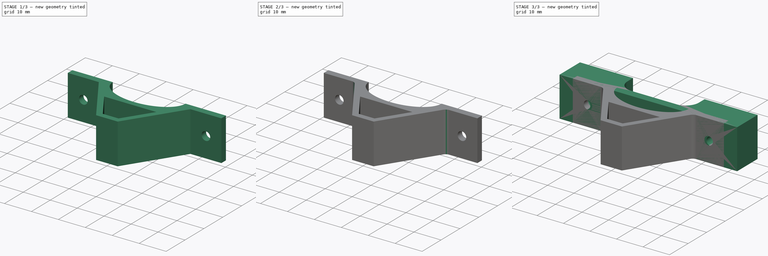
[diagram: build sequence overview — one tinted view per stage of 3, left to right]
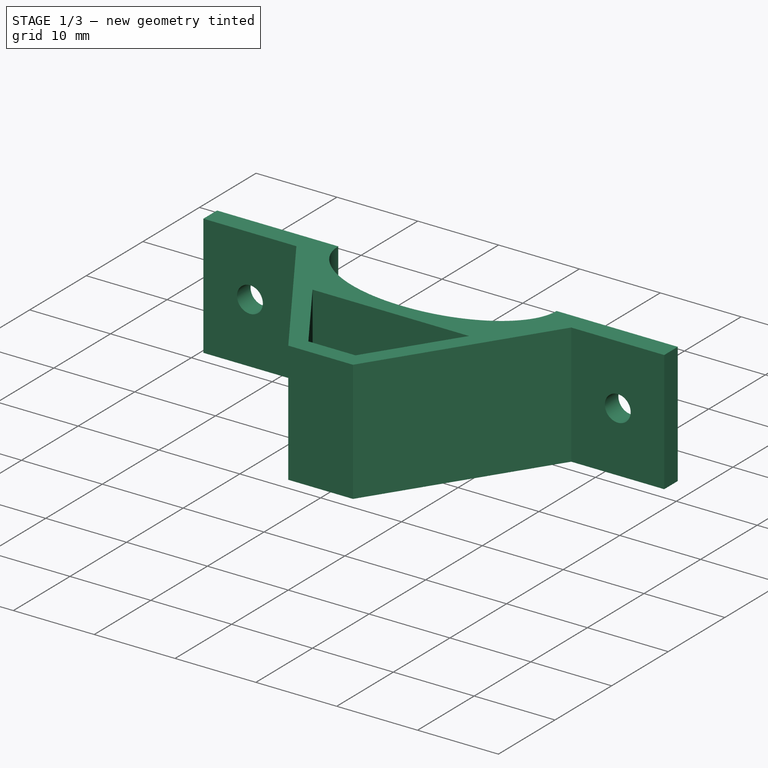
[diagram: stage 1 of 3 — iso view after this stage's code; geometry added in this stage tinted green]
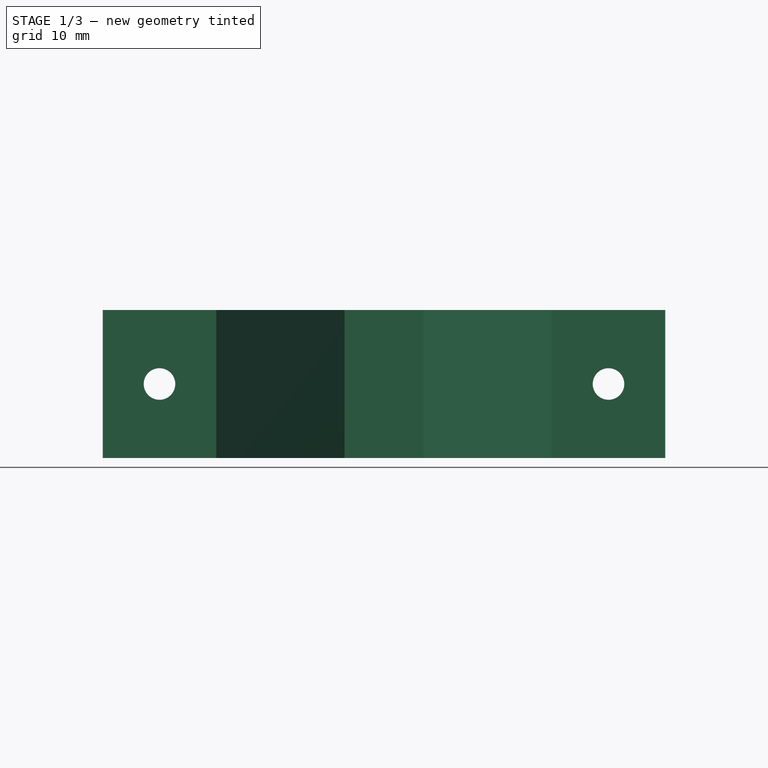
[diagram: stage 1 of 3 — front view after this stage's code; geometry added in this stage tinted green]
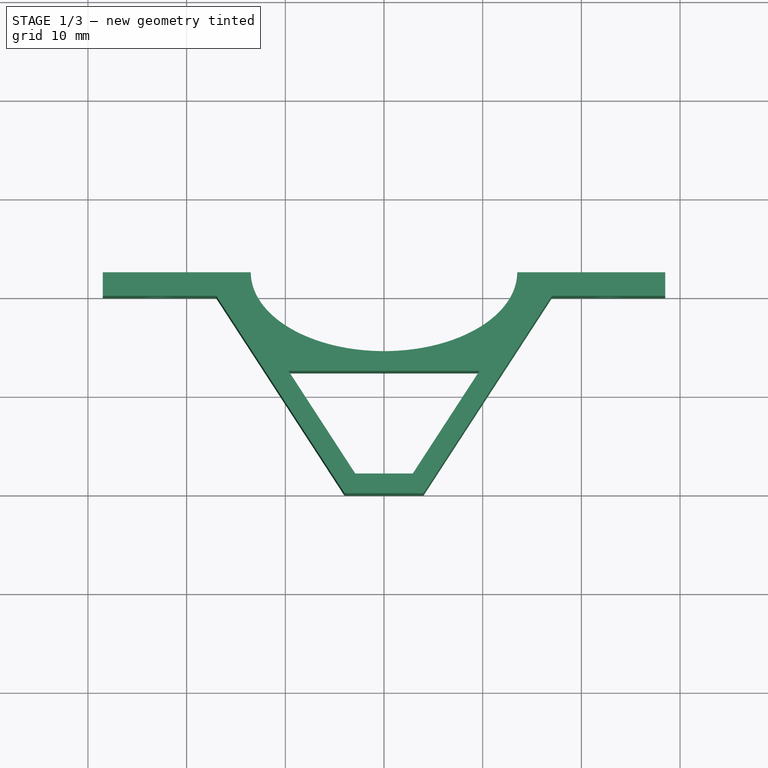
[diagram: stage 1 of 3 — top view after this stage's code; geometry added in this stage tinted green]
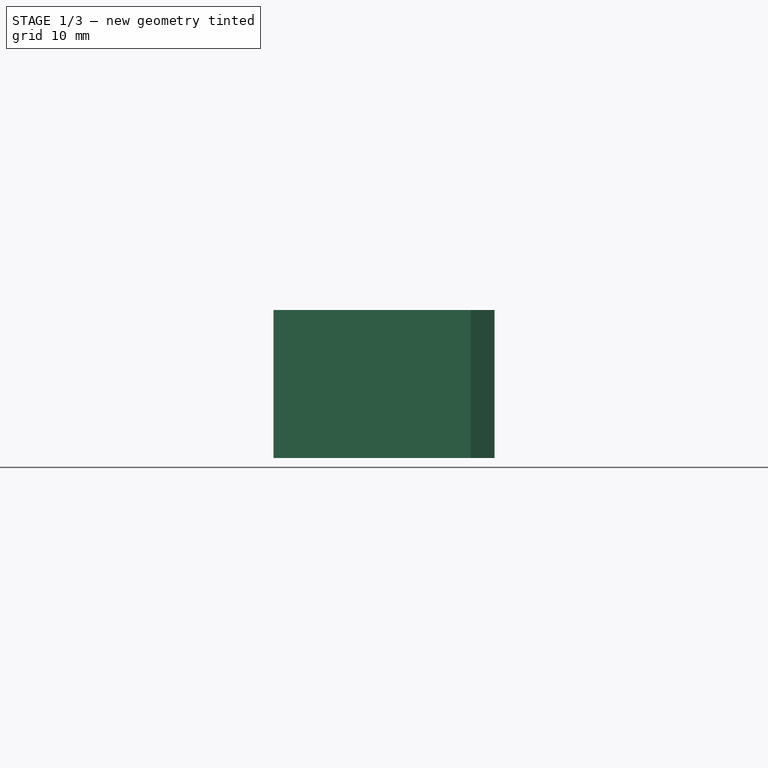
[diagram: stage 1 of 3 — right view after this stage's code; geometry added in this stage tinted green]
FCSTD DOCUMENT  (FreeCAD 1.0R39109 (Git))
Label: bike speeder hall sensor mount
License: All rights reserved
LicenseURL: https://en.wikipedia.org/wiki/All_rights_reserved
objects: Sketcher::SketchObject×4, PartDesign::Pad×2, PartDesign::Pocket×2, PartDesign::Body×2, PartDesign::Fillet×1
note: 25 computed .brp shape members not serialized (recipe doc carries the construction recipe); baked Part::Feature solids carry a one-line shape summary decoded from their .brp

FEATURE [PartDesign::Body] Body
  AllowCompound = false
  Group = -> [Sketch,Pad,Sketch001,Pocket]
  Origin = -> Origin
  Tip = -> Pocket
FEATURE [Sketcher::SketchObject] Sketch002
  ArcFitTolerance = 1e-06
  AttachmentSupport = -> [XY_Plane001]
  FullyConstrained = true
  MakeInternals = false
  MapMode = 5
  sketch-geometry (20):
    g0: LineSegment StartX=28.5 StartY=0 StartZ=0 EndX=28.5 EndY=2.4 EndZ=0
    g1: LineSegment StartX=28.5 StartY=2.4 StartZ=0 EndX=13.5 EndY=2.4 EndZ=0
    g2: LineSegment StartX=-28.5 StartY=0 StartZ=0 EndX=-28.5 EndY=2.4 EndZ=0
    g3: LineSegment StartX=-28.5 StartY=2.4 StartZ=0 EndX=-13.5 EndY=2.4 EndZ=0
    g4: LineSegment StartX=-28.5 StartY=0 StartZ=0 EndX=-17 EndY=0 EndZ=0
    g5: LineSegment StartX=-17 StartY=0 StartZ=0 EndX=-4 EndY=-20 EndZ=0
    g6: LineSegment StartX=-4 StartY=-20 StartZ=0 EndX=4 EndY=-20 EndZ=0
    g7: LineSegment StartX=4 StartY=-20 StartZ=0 EndX=17 EndY=0 EndZ=0
    g8: LineSegment StartX=17 StartY=0 StartZ=0 EndX=28.5 EndY=0 EndZ=0
    g9: ArcOfEllipse CenterX=0 CenterY=2.4 CenterZ=0 NormalX=0 NormalY=0 NormalZ=1 MajorRadius=13.5 MinorRadius=8 AngleXU=-3.14159 StartAngle=0 EndAngle=3.14159
    g10: LineSegment [constr] StartX=-13.5 StartY=2.4 StartZ=0 EndX=13.5 EndY=2.4 EndZ=0
    g11: LineSegment [constr] StartX=0 StartY=-5.6 StartZ=0 EndX=0 EndY=10.4 EndZ=0
    g12: GeomPoint [constr] X=-10.8743 Y=2.4 Z=0
    g13: GeomPoint [constr] X=10.8743 Y=2.4 Z=0
    g14: LineSegment StartX=-9.67463 StartY=-7.6 StartZ=0 EndX=-2.91463 EndY=-18 EndZ=0
    g15: LineSegment StartX=-2.91463 StartY=-18 StartZ=0 EndX=2.91463 EndY=-18 EndZ=0
    g16: LineSegment StartX=2.91463 StartY=-18 StartZ=0 EndX=9.67463 EndY=-7.6 EndZ=0
    g17: LineSegment StartX=9.67463 StartY=-7.6 StartZ=0 EndX=-9.67463 EndY=-7.6 EndZ=0
    g18: GeomPoint [constr] X=-11.3515 Y=-8.68998 Z=0
    g19: LineSegment [constr] StartX=-11.3515 StartY=-8.68998 StartZ=0 EndX=-9.67463 EndY=-7.6 EndZ=0
  constraints (44):
    c: PointOnObject(g2,g-1)
    c: Coincident(g0,g1)
    c: Horizontal(g1)
    c: Coincident(g2,g3)
    c: Horizontal(g3)
    c: Symmetric(g0,g2,g-1)
    c: Vertical(g2)
    c: Symmetric(g2,g0,g-2)
    c: DistanceX(g3,g3) = 15
    c: Coincident(g2,g4)
    c: Coincident(g5,g6)
    c: Coincident(g6,g7)
    c: Coincident(g7,g8)
    c: Coincident(g8,g0)
    c: Symmetric(g4,g7,g-2)
    c: Symmetric(g5,g6,g-2)
    c: PointOnObject(g4,g-1)
    c: DistanceY(g5,g-1) = 20
    c: DistanceX(g6,g6) = 8
    c: InternalAlignment(g10-g13 -> g9) x4
    c: Coincident(g9,g3)
    c: Coincident(g9,g1)
    c: Horizontal(g10)
    c: DistanceX(g3,g1) = 27
    c: DistanceY(g11,g3) = 8
    c: PointOnObject(g9,g-2)
    c: DistanceY(g2,g2) = 2.4
    c: Horizontal(g10,g3)
    c: Coincident(g5,g4)
    c: DistanceX(g4,g7) = 34
    c: Coincident(g14,g15)
    c: Coincident(g15,g16)
    c: Coincident(g16,g17)
    c: Coincident(g17,g14)
    c: Symmetric(g14,g16,g-2)
    c: Symmetric(g14,g15,g-2)
    c: DistanceY(g14,g11) = 2
    c: DistanceY(g5,g14) = 2
    c: Parallel(g5,g14)
    c: PointOnObject(g18,g5)
    c: Coincident(g19,g18)
    c: Coincident(g19,g14)
    c: Perpendicular(g19,g14)
    c: Distance(g19,g19) = 2
FEATURE [PartDesign::Pad] Pad001
  Direction = (0,0,1)
  Length = 15
  Length2 = 10
  Midplane = true
  Profile = -> Sketch002
  ReferenceAxis = -> Sketch002 [N_Axis]
  Refine = true
  Suppressed = false
  Type = 0
FEATURE [Sketcher::SketchObject] Sketch003
  ArcFitTolerance = 1e-06
  AttachmentSupport = -> [XZ_Plane001]
  ExternalGeometry = -> [Pad001]
  FullyConstrained = true
  MakeInternals = false
  MapMode = 5
  Placement = pos=(0,0,0) rot=(1,0,0;1.5708rad)
  sketch-geometry (2):
    g0: Circle CenterX=-22.75 CenterY=-8e-16 CenterZ=0 NormalX=0 NormalY=0 NormalZ=1 AngleXU=0 Radius=1.6
    g1: Circle CenterX=22.75 CenterY=0 CenterZ=0 NormalX=0 NormalY=0 NormalZ=1 AngleXU=0 Radius=1.6
  constraints (4):
    c: Symmetric(g-3,g-4,g0)
    c: Symmetric(g1,g0,g-2)
    c: Equal(g0,g1)
    c: Diameter(g0) = 3.2
FEATURE [PartDesign::Pocket] Pocket001
  BaseFeature = -> Pad001
  Direction = (0,1,-2e-16)
  Length = 5
  Length2 = 5
  Profile = -> Sketch003
  ReferenceAxis = -> Sketch003 [N_Axis]
  Refine = true
  Suppressed = false
  Type = 1
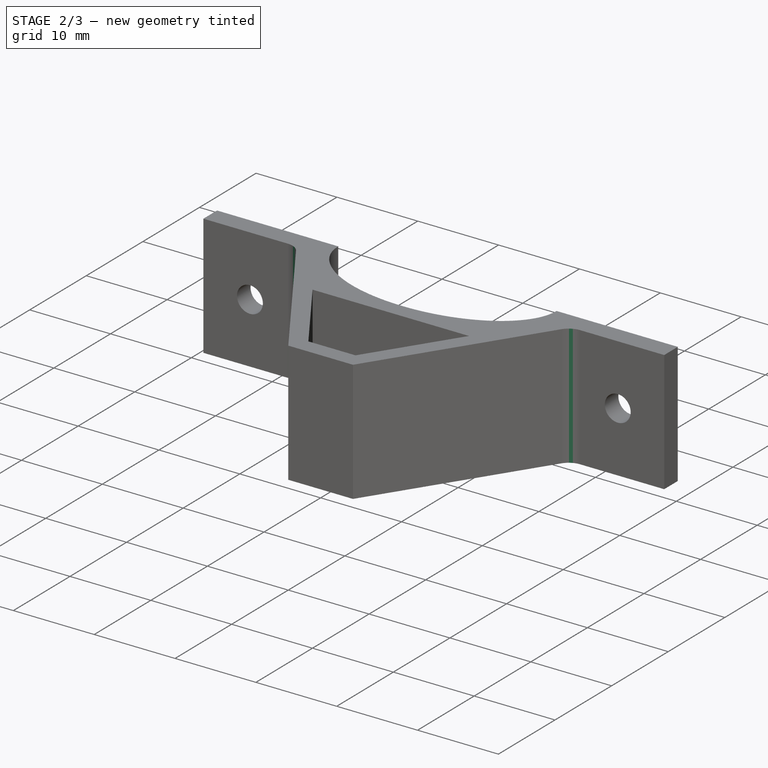
[diagram: stage 2 of 3 — iso view after this stage's code; geometry added in this stage tinted green]
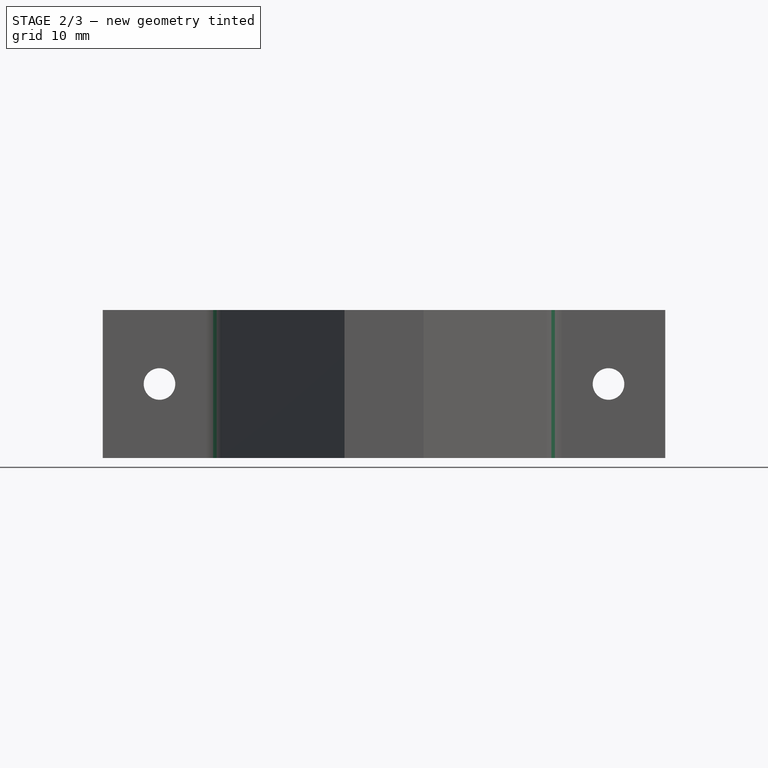
[diagram: stage 2 of 3 — front view after this stage's code; geometry added in this stage tinted green]
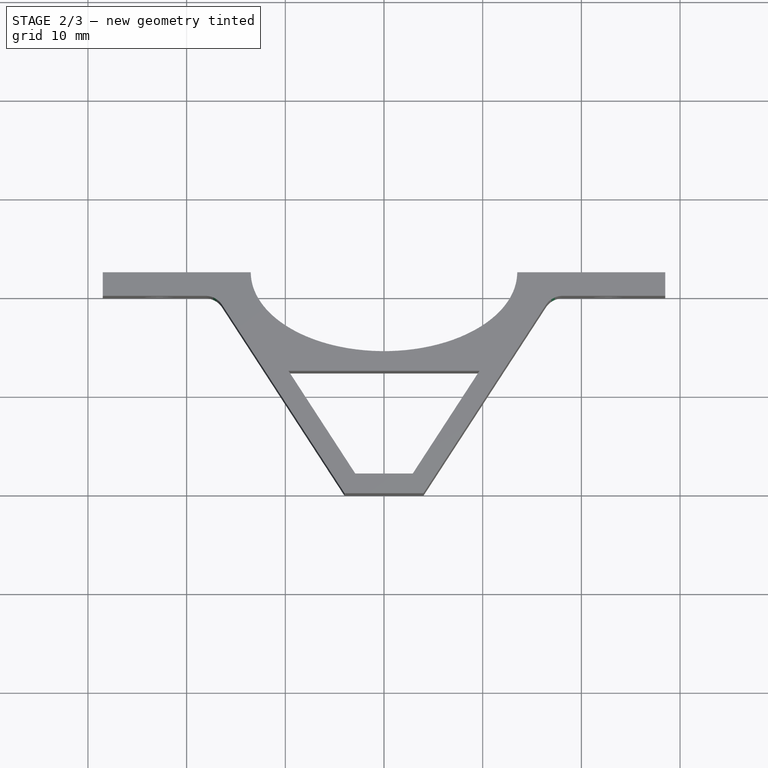
[diagram: stage 2 of 3 — top view after this stage's code; geometry added in this stage tinted green]
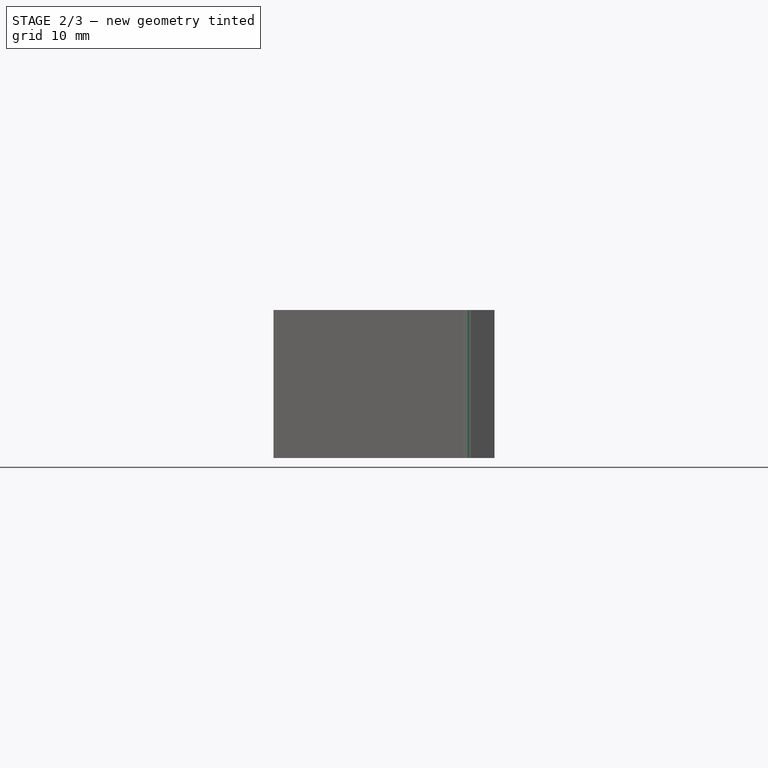
[diagram: stage 2 of 3 — right view after this stage's code; geometry added in this stage tinted green]
FEATURE [PartDesign::Fillet] Fillet
  Base = -> Pocket001 [Edge4,Edge38]
  BaseFeature = -> Pocket001
  Radius = 2
  Refine = true
  SupportTransform = false
  Suppressed = false
  UseAllEdges = false
FEATURE [PartDesign::Body] Body001
  AllowCompound = false
  Group = -> [Sketch002,Pad001,Sketch003,Pocket001,Fillet]
  Origin = -> Origin001
  Placement = pos=(0,-30,0) rot=(0,0,1;0rad)
  Tip = -> Fillet
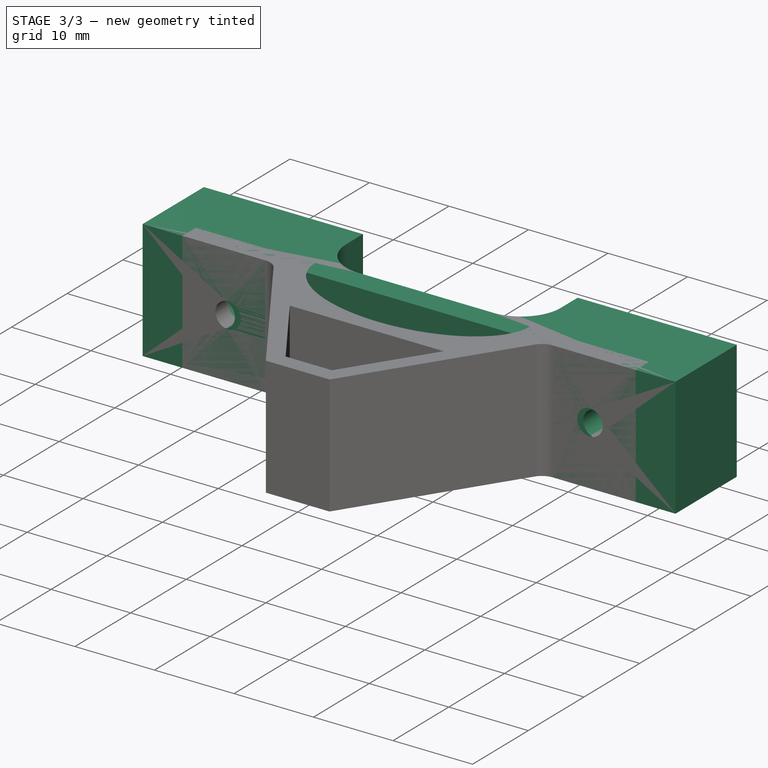
[diagram: stage 3 of 3 — iso view after this stage's code; geometry added in this stage tinted green]
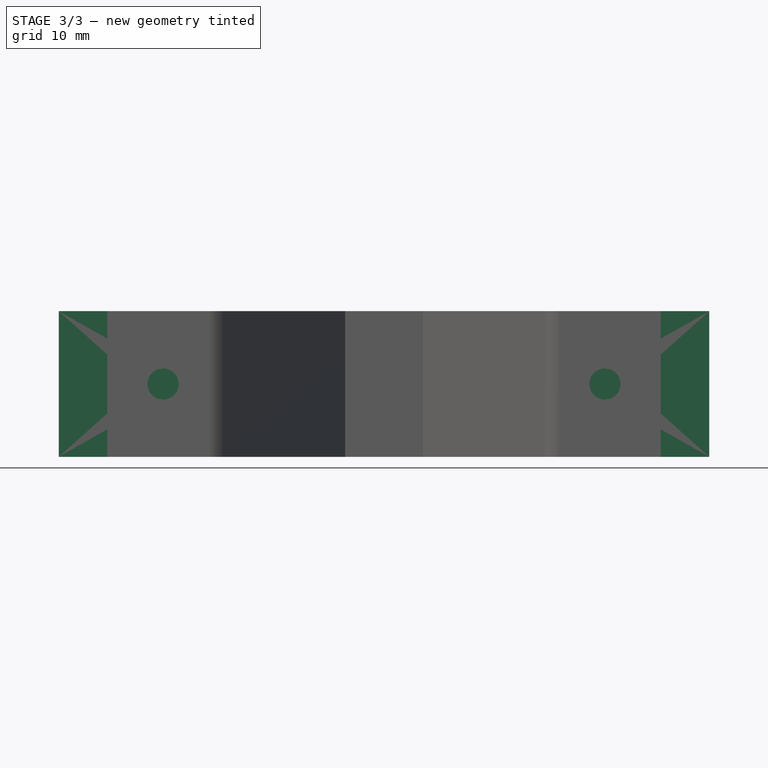
[diagram: stage 3 of 3 — front view after this stage's code; geometry added in this stage tinted green]
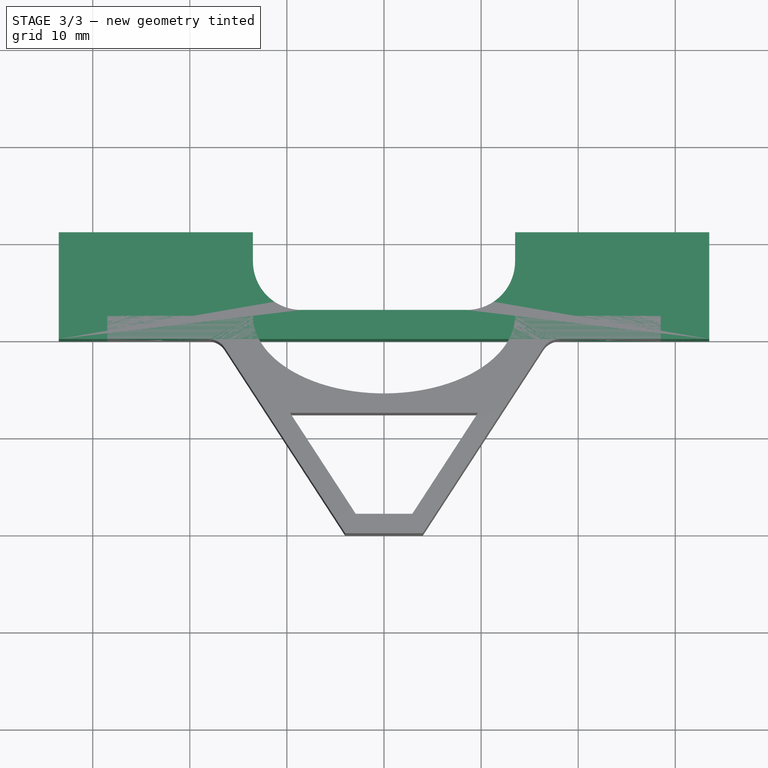
[diagram: stage 3 of 3 — top view after this stage's code; geometry added in this stage tinted green]
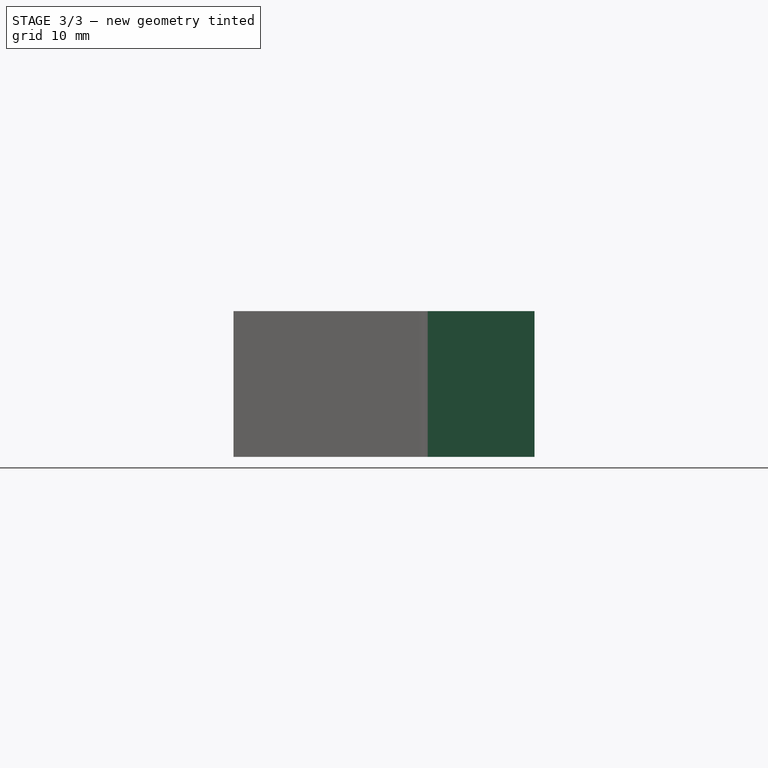
[diagram: stage 3 of 3 — right view after this stage's code; geometry added in this stage tinted green]
FEATURE [Sketcher::SketchObject] Sketch
  ArcFitTolerance = 1e-06
  AttachmentSupport = -> [XY_Plane]
  FullyConstrained = true
  MakeInternals = false
  MapMode = 5
  sketch-geometry (12):
    g0: LineSegment StartX=-33.5 StartY=0 StartZ=0 EndX=33.5 EndY=0 EndZ=0
    g1: LineSegment StartX=33.5 StartY=0 StartZ=0 EndX=33.5 EndY=11 EndZ=0
    g2: LineSegment StartX=33.5 StartY=11 StartZ=0 EndX=13.5 EndY=11 EndZ=0
    g3: LineSegment StartX=-33.5 StartY=0 StartZ=0 EndX=-33.5 EndY=11 EndZ=0
    g4: LineSegment StartX=-33.5 StartY=11 StartZ=0 EndX=-13.5 EndY=11 EndZ=0
    g5: LineSegment StartX=-13.5 StartY=11 StartZ=0 EndX=-13.5 EndY=8 EndZ=0
    g6: LineSegment StartX=-8.5 StartY=3 StartZ=0 EndX=8.5 EndY=3 EndZ=0
    g7: LineSegment StartX=13.5 StartY=8 StartZ=0 EndX=13.5 EndY=11 EndZ=0
    g8: ArcOfCircle CenterX=-8.5 CenterY=8 CenterZ=0 NormalX=0 NormalY=0 NormalZ=1 AngleXU=0 Radius=5 StartAngle=3.14159 EndAngle=4.71239
    g9: GeomPoint [constr] X=-13.5 Y=3 Z=0
    g10: ArcOfCircle CenterX=8.5 CenterY=8 CenterZ=0 NormalX=0 NormalY=0 NormalZ=1 AngleXU=0 Radius=5 StartAngle=4.71239 EndAngle=6.28319
    g11: GeomPoint [constr] X=13.5 Y=3 Z=0
  constraints (29):
    c: PointOnObject(g0,g-1)
    c: Coincident(g0,g1)
    c: Coincident(g1,g2)
    c: Horizontal(g2)
    c: Coincident(g0,g3)
    c: Coincident(g3,g4)
    c: Horizontal(g4)
    c: Coincident(g4,g5)
    c: Vertical(g5)
    c: Coincident(g7,g2)
    c: Vertical(g7)
    c: Symmetric(g0,g0,g-1)
    c: Vertical(g3)
    c: Symmetric(g3,g1,g-2)
    c: Symmetric(g9,g11,g-2)
    c: DistanceX(g9,g11) = 27
    c: PointOnObject(g9,g6)
    c: PointOnObject(g9,g5)
    c: Tangent(g6,g8) = -1.5708
    c: Tangent(g5,g8) = -1.5708
    c: PointOnObject(g11,g6)
    c: PointOnObject(g11,g7)
    c: Tangent(g6,g10) = -1.5708
    c: Tangent(g7,g10) = -1.5708
    c: Equal(g10,g8)
    c: Diameter(g8) = 10
    c: DistanceY(g6,g4) = 8
    c: DistanceY(g-1,g6) = 3
    c: DistanceX(g4,g4) = 20
FEATURE [PartDesign::Pad] Pad
  Direction = (0,0,1)
  Length = 15
  Length2 = 10
  Midplane = true
  Profile = -> Sketch
  ReferenceAxis = -> Sketch [N_Axis]
  Refine = true
  Suppressed = false
  Type = 0
FEATURE [Sketcher::SketchObject] Sketch001
  ArcFitTolerance = 1e-06
  AttachmentSupport = -> [XZ_Plane]
  ExternalGeometry = -> [Pad]
  FullyConstrained = true
  MakeInternals = false
  MapMode = 5
  Placement = pos=(0,0,0) rot=(1,0,0;1.5708rad)
  sketch-geometry (2):
    g0: Circle CenterX=-23.5 CenterY=2.1e-15 CenterZ=0 NormalX=0 NormalY=0 NormalZ=1 AngleXU=0 Radius=1.6
    g1: Circle CenterX=23.5 CenterY=1.3e-15 CenterZ=0 NormalX=0 NormalY=0 NormalZ=1 AngleXU=0 Radius=1.6
  constraints (4):
    c: Equal(g0,g1)
    c: Diameter(g0) = 3.2
    c: Symmetric(g-5,g-6,g0)
    c: Symmetric(g-3,g-4,g1)
FEATURE [PartDesign::Pocket] Pocket
  BaseFeature = -> Pad
  Direction = (0,1,-2e-16)
  Length = 5
  Length2 = 5
  Profile = -> Sketch001
  ReferenceAxis = -> Sketch001 [N_Axis]
  Refine = true
  Suppressed = false
  Type = 0
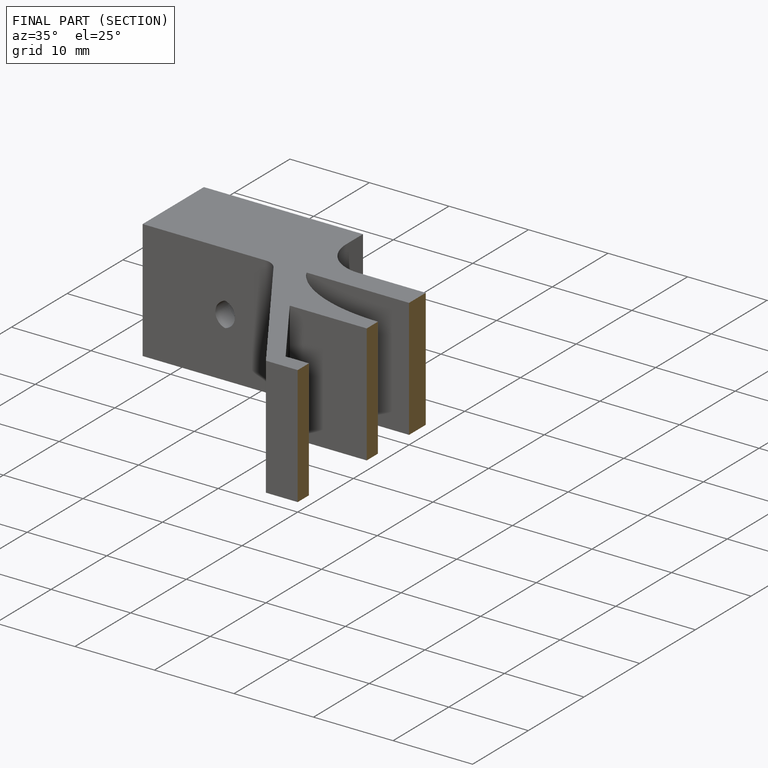
[diagram: finished part — half-section view (interior)]
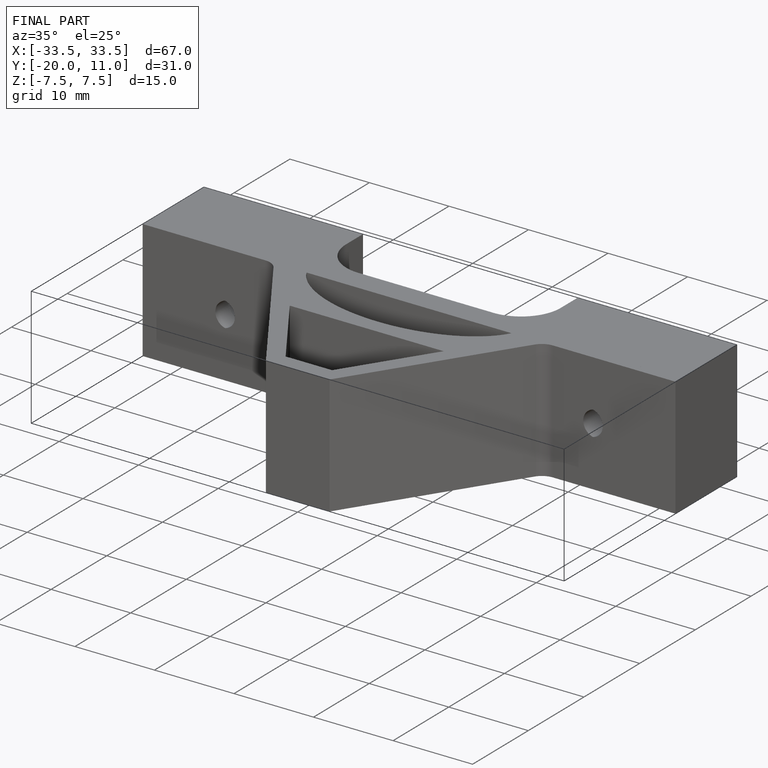
[diagram: finished part — iso view with bounding-box wireframe]
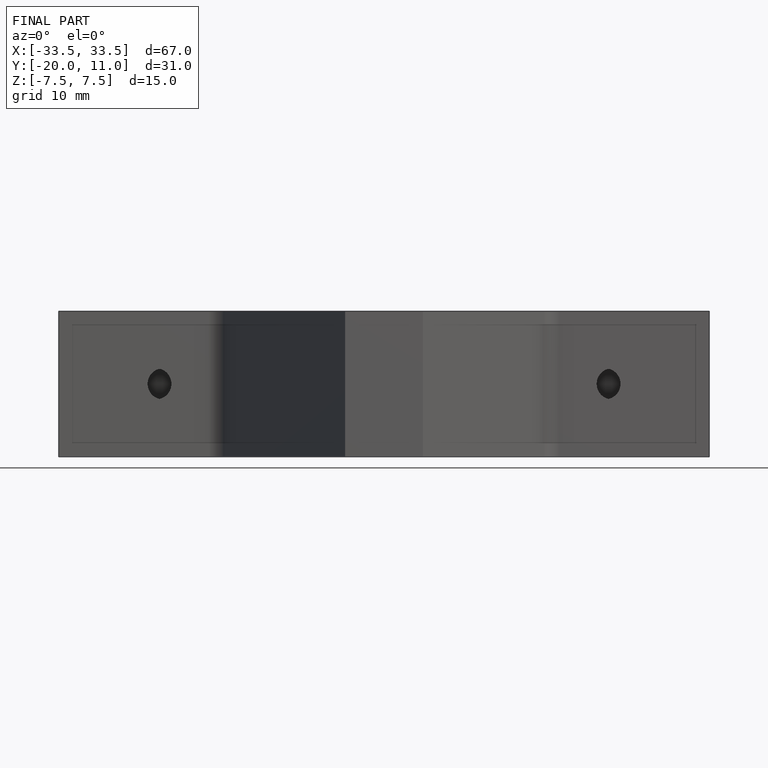
[diagram: finished part — front view with bounding-box wireframe]
